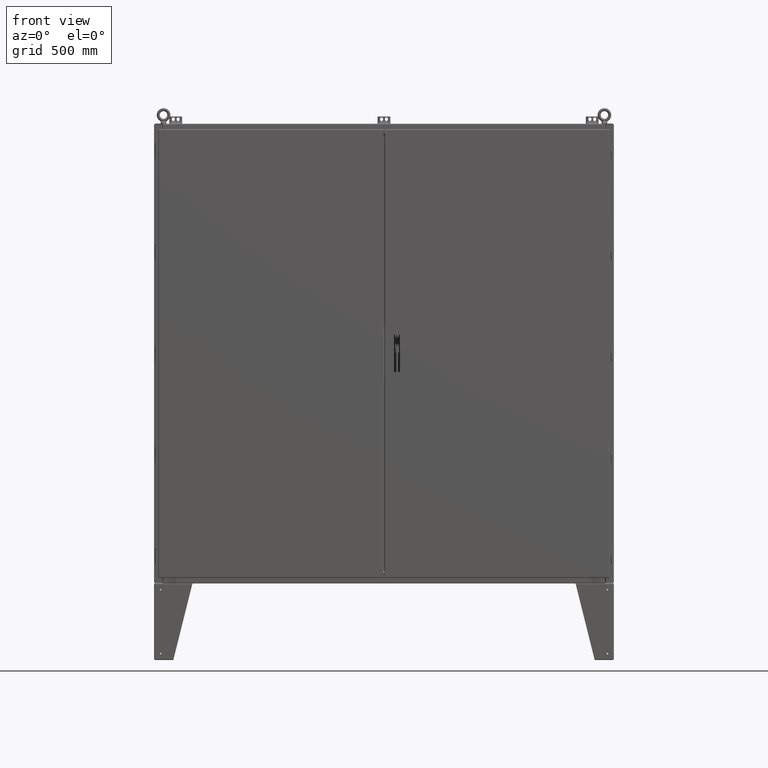
[diagram: clean part render]
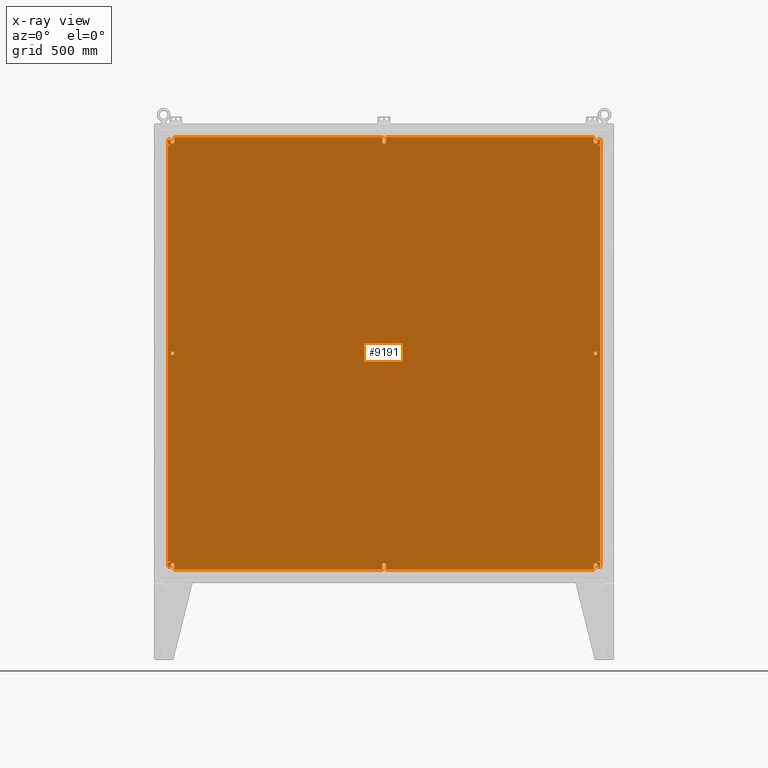
[diagram: x-ray — body ghosted, one internal face saturated and labeled with its STEP entity id]
A machine part, front view, then the same camera in x-ray: the body is ghosted and one INTERNAL B-rep face — a face not visible from any outside direction — is saturated and labeled: STEP entity #9191.
In plain terms, the highlighted planar face has unit normal (0, -1, 0).
Its self-contained STEP definition (entity closure, byte-faithful):
#9191 = ADVANCED_FACE( '', ( #18903, #18904, #18905, #18906, #18907, #18908, #18909 ), #18910, .F. );
#18903 = FACE_BOUND( '', #38440, .T. );
#18904 = FACE_BOUND( '', #38441, .T. );
#18905 = FACE_BOUND( '', #38442, .T. );
#18906 = FACE_BOUND( '', #38443, .T. );
#18907 = FACE_BOUND( '', #38444, .T. );
#18908 = FACE_BOUND( '', #38445, .T. );
#18909 = FACE_OUTER_BOUND( '', #38446, .T. );
#18910 = PLANE( '', #38447 );
#38440 = EDGE_LOOP( '', ( #69443 ) );
#38441 = EDGE_LOOP( '', ( #69444 ) );
#38442 = EDGE_LOOP( '', ( #69445 ) );
#38443 = EDGE_LOOP( '', ( #69446 ) );
#38444 = EDGE_LOOP( '', ( #69447 ) );
#38445 = EDGE_LOOP( '', ( #69448 ) );
#38446 = EDGE_LOOP( '', ( #69449, #69450, #69451, #69452, #69453, #69454, #69455, #69456, #69457, #69458, #69459, #69460, #69461, #69462, #69463, #69464, #69465, #69466, #69467, #69468, #69469, #69470, #69471, #69472, #69473, #69474, #69475, #69476, #69477, #69478, #69479, #69480 ) );
#38447 = AXIS2_PLACEMENT_3D( '', #69481, #69482, #69483 );
#69443 = ORIENTED_EDGE( '', *, *, #81985, .F. );
#69444 = ORIENTED_EDGE( '', *, *, #80690, .F. );
#69445 = ORIENTED_EDGE( '', *, *, #80844, .F. );
#69446 = ORIENTED_EDGE( '', *, *, #81281, .F. );
#69447 = ORIENTED_EDGE( '', *, *, #73898, .F. );
#69448 = ORIENTED_EDGE( '', *, *, #80079, .F. );
#69449 = ORIENTED_EDGE( '', *, *, #80392, .F. );
#69450 = ORIENTED_EDGE( '', *, *, #81986, .F. );
#69451 = ORIENTED_EDGE( '', *, *, #80652, .F. );
#69452 = ORIENTED_EDGE( '', *, *, #80350, .F. );
#69453 = ORIENTED_EDGE( '', *, *, #79677, .F. );
#69454 = ORIENTED_EDGE( '', *, *, #80931, .T. );
#69455 = ORIENTED_EDGE( '', *, *, #81149, .T. );
#69456 = ORIENTED_EDGE( '', *, *, #79913, .T. );
#69457 = ORIENTED_EDGE( '', *, *, #81987, .T. );
#69458 = ORIENTED_EDGE( '', *, *, #80423, .T. );
#69459 = ORIENTED_EDGE( '', *, *, #81046, .T. );
#69460 = ORIENTED_EDGE( '', *, *, #78937, .T. );
#69461 = ORIENTED_EDGE( '', *, *, #81988, .T. );
#69462 = ORIENTED_EDGE( '', *, *, #81690, .T. );
#69463 = ORIENTED_EDGE( '', *, *, #81299, .T. );
#69464 = ORIENTED_EDGE( '', *, *, #78144, .T. );
#69465 = ORIENTED_EDGE( '', *, *, #81989, .T. );
#69466 = ORIENTED_EDGE( '', *, *, #75605, .F. );
#69467 = ORIENTED_EDGE( '', *, *, #75639, .F. );
#69468 = ORIENTED_EDGE( '', *, *, #81069, .F. );
#69469 = ORIENTED_EDGE( '', *, *, #78234, .T. );
#69470 = ORIENTED_EDGE( '', *, *, #81727, .T. );
#69471 = ORIENTED_EDGE( '', *, *, #76851, .T. );
#69472 = ORIENTED_EDGE( '', *, *, #80719, .T. );
#69473 = ORIENTED_EDGE( '', *, *, #75847, .T. );
#69474 = ORIENTED_EDGE( '', *, *, #73639, .T. );
#69475 = ORIENTED_EDGE( '', *, *, #81990, .T. );
#69476 = ORIENTED_EDGE( '', *, *, #81172, .T. );
#69477 = ORIENTED_EDGE( '', *, *, #74404, .T. );
#69478 = ORIENTED_EDGE( '', *, *, #73621, .T. );
#69479 = ORIENTED_EDGE( '', *, *, #79890, .T. );
#69480 = ORIENTED_EDGE( '', *, *, #74752, .T. );
#69481 = CARTESIAN_POINT( '', ( 0.000000000000000, 2.66700000000000, 0.000000000000000 ) );
#69482 = DIRECTION( '', ( 0.000000000000000, -1.00000000000000, 0.000000000000000 ) );
#69483 = DIRECTION( '', ( 0.000000000000000, 0.000000000000000, -1.00000000000000 ) );
#73621 = EDGE_CURVE( '', #83978, #83983, #83985, .T. );
#73639 = EDGE_CURVE( '', #84017, #84015, #84018, .T. );
#73898 = EDGE_CURVE( '', #84470, #84470, #84471, .F. );
#74404 = EDGE_CURVE( '', #85336, #83978, #85340, .T. );
#74752 = EDGE_CURVE( '', #85918, #85916, #85919, .T. );
#75605 = EDGE_CURVE( '', #87321, #87322, #87323, .T. );
#75639 = EDGE_CURVE( '', #87376, #87321, #87378, .F. );
#75847 = EDGE_CURVE( '', #87711, #84017, #87715, .T. );
#76851 = EDGE_CURVE( '', #89279, #89284, #89286, .T. );
#78144 = EDGE_CURVE( '', #91230, #91228, #91231, .T. );
#78234 = EDGE_CURVE( '', #91353, #91351, #91354, .T. );
#78937 = EDGE_CURVE( '', #92346, #92347, #92348, .T. );
#79677 = EDGE_CURVE( '', #93353, #93355, #93356, .F. );
#79890 = EDGE_CURVE( '', #83983, #85918, #93635, .T. );
#79913 = EDGE_CURVE( '', #93660, #93665, #93667, .T. );
#80079 = EDGE_CURVE( '', #93873, #93873, #93874, .F. );
#80350 = EDGE_CURVE( '', #93355, #94221, #94222, .F. );
#80392 = EDGE_CURVE( '', #94274, #85916, #94275, .F. );
#80423 = EDGE_CURVE( '', #94314, #94312, #94315, .T. );
#80652 = EDGE_CURVE( '', #94221, #94602, #94606, .F. );
#80690 = EDGE_CURVE( '', #94647, #94647, #94648, .F. );
#80719 = EDGE_CURVE( '', #89284, #87711, #94683, .T. );
#80844 = EDGE_CURVE( '', #94832, #94832, #94833, .F. );
#80931 = EDGE_CURVE( '', #93353, #94929, #94930, .T. );
#81046 = EDGE_CURVE( '', #94312, #92346, #95060, .T. );
#81069 = EDGE_CURVE( '', #91353, #87376, #95086, .F. );
#81149 = EDGE_CURVE( '', #94929, #93660, #95179, .T. );
#81172 = EDGE_CURVE( '', #95205, #85336, #95206, .T. );
#81281 = EDGE_CURVE( '', #95332, #95332, #95333, .F. );
#81299 = EDGE_CURVE( '', #95350, #91230, #95354, .T. );
#81690 = EDGE_CURVE( '', #95809, #95350, #95813, .T. );
#81727 = EDGE_CURVE( '', #91351, #89279, #95856, .T. );
#81985 = EDGE_CURVE( '', #96127, #96127, #96128, .F. );
#81986 = EDGE_CURVE( '', #94602, #94274, #96129, .T. );
#81987 = EDGE_CURVE( '', #93665, #94314, #96130, .T. );
#81988 = EDGE_CURVE( '', #92347, #95809, #96131, .T. );
#81989 = EDGE_CURVE( '', #91228, #87322, #96132, .T. );
#81990 = EDGE_CURVE( '', #84015, #95205, #96133, .T. );
#83978 = VERTEX_POINT( '', #100548 );
#83983 = VERTEX_POINT( '', #100555 );
#83985 = LINE( '', #100558, #100559 );
#84015 = VERTEX_POINT( '', #100640 );
#84017 = VERTEX_POINT( '', #100642 );
#84018 = LINE( '', #100643, #100644 );
#84470 = VERTEX_POINT( '', #101744 );
#84471 = CIRCLE( '', #101745, 2.99720000000000 );
#85336 = VERTEX_POINT( '', #104354 );
#85340 = LINE( '', #104360, #104361 );
#85916 = VERTEX_POINT( '', #105976 );
#85918 = VERTEX_POINT( '', #105978 );
#85919 = LINE( '', #105979, #105980 );
#87321 = VERTEX_POINT( '', #109701 );
#87322 = VERTEX_POINT( '', #109702 );
#87323 = LINE( '', #109703, #109704 );
#87376 = VERTEX_POINT( '', #109865 );
#87378 = CIRCLE( '', #109868, 7.13740000000000 );
#87711 = VERTEX_POINT( '', #110757 );
#87715 = LINE( '', #110763, #110764 );
#89279 = VERTEX_POINT( '', #115019 );
#89284 = VERTEX_POINT( '', #115025 );
#89286 = CIRCLE( '', #115028, 7.13739999999943 );
#91228 = VERTEX_POINT( '', #121039 );
#91230 = VERTEX_POINT( '', #121041 );
#91231 = LINE( '', #121042, #121043 );
#91351 = VERTEX_POINT( '', #121376 );
#91353 = VERTEX_POINT( '', #121378 );
#91354 = LINE( '', #121379, #121380 );
#92346 = VERTEX_POINT( '', #124485 );
#92347 = VERTEX_POINT( '', #124486 );
#92348 = LINE( '', #124487, #124488 );
#93353 = VERTEX_POINT( '', #127340 );
#93355 = VERTEX_POINT( '', #127342 );
#93356 = LINE( '', #127343, #127344 );
#93635 = CIRCLE( '', #128033, 7.13739999999943 );
#93660 = VERTEX_POINT( '', #128077 );
#93665 = VERTEX_POINT( '', #128084 );
#93667 = LINE( '', #128087, #128088 );
#93873 = VERTEX_POINT( '', #128612 );
#93874 = CIRCLE( '', #128613, 2.99720000000000 );
#94221 = VERTEX_POINT( '', #129545 );
#94222 = LINE( '', #129546, #129547 );
#94274 = VERTEX_POINT( '', #129692 );
#94275 = LINE( '', #129693, #129694 );
#94312 = VERTEX_POINT( '', #129762 );
#94314 = VERTEX_POINT( '', #129764 );
#94315 = LINE( '', #129765, #129766 );
#94602 = VERTEX_POINT( '', #130616 );
#94606 = CIRCLE( '', #130621, 7.13740000000000 );
#94647 = VERTEX_POINT( '', #130754 );
#94648 = CIRCLE( '', #130755, 7.13740000000000 );
#94683 = LINE( '', #130812, #130813 );
#94832 = VERTEX_POINT( '', #131246 );
#94833 = CIRCLE( '', #131247, 2.99720000000000 );
#94929 = VERTEX_POINT( '', #131567 );
#94930 = LINE( '', #131568, #131569 );
#95060 = LINE( '', #131879, #131880 );
#95086 = LINE( '', #131928, #131929 );
#95179 = CIRCLE( '', #132224, 7.13739999999943 );
#95205 = VERTEX_POINT( '', #132272 );
#95206 = LINE( '', #132273, #132274 );
#95332 = VERTEX_POINT( '', #132635 );
#95333 = CIRCLE( '', #132636, 2.99720000000000 );
#95350 = VERTEX_POINT( '', #132670 );
#95354 = CIRCLE( '', #132675, 7.13739999999943 );
#95809 = VERTEX_POINT( '', #134212 );
#95813 = LINE( '', #134218, #134219 );
#95856 = LINE( '', #134350, #134351 );
#96127 = VERTEX_POINT( '', #134822 );
#96128 = CIRCLE( '', #134823, 7.13740000000000 );
#96129 = LINE( '', #134824, #134825 );
#96130 = LINE( '', #134826, #134827 );
#96131 = LINE( '', #134828, #134829 );
#96132 = LINE( '', #134830, #134831 );
#96133 = LINE( '', #134832, #134833 );
#100548 = CARTESIAN_POINT( '', ( -848.508050332916, 2.66700000000109, 847.428550333135 ) );
#100555 = CARTESIAN_POINT( '', ( -848.508050332916, 2.66700000000109, 841.370650332917 ) );
#100558 = CARTESIAN_POINT( '', ( -848.508050332931, 2.66700000000000, 1.55504906655027E-011 ) );
#100559 = VECTOR( '', #136014, 1000.00000000000 );
#100640 = CARTESIAN_POINT( '', ( -860.120200000000, 2.66699999999995, -850.100948481058 ) );
#100642 = CARTESIAN_POINT( '', ( -851.150734791207, 2.66700000000020, -850.100948481058 ) );
#100643 = CARTESIAN_POINT( '', ( 0.000000000000000, 2.66700000000000, -850.100948481058 ) );
#100644 = VECTOR( '', #136028, 1000.00000000000 );
#101744 = CARTESIAN_POINT( '', ( -854.075000000000, 2.66700000000020, 825.677800000000 ) );
#101745 = AXIS2_PLACEMENT_3D( '', #136254, #136255, #136256 );
#104354 = CARTESIAN_POINT( '', ( -851.150734791207, 2.66700000000000, 850.100948481058 ) );
#104360 = CARTESIAN_POINT( '', ( -5.30962530449220, 2.66700000000000, -5.25058898219768 ) );
#104361 = VECTOR( '', #136552, 1000.00000000000 );
#105976 = CARTESIAN_POINT( '', ( -834.233250332917, 2.66700000000000, 860.120200000000 ) );
#105978 = CARTESIAN_POINT( '', ( -834.233250332917, 2.66700000000109, 841.370650332917 ) );
#105979 = CARTESIAN_POINT( '', ( -834.233250332922, 2.66700000000000, 4.73417098478091E-012 ) );
#105980 = VECTOR( '', #136766, 1000.00000000000 );
#109701 = CARTESIAN_POINT( '', ( 7.13740000000035, 2.66700000000000, -841.370650332917 ) );
#109702 = CARTESIAN_POINT( '', ( 7.13740000000041, 2.66700000000000, -860.120200000000 ) );
#109703 = CARTESIAN_POINT( '', ( 7.13740000000041, 2.66700000000000, -860.120200000000 ) );
#109704 = VECTOR( '', #137247, 1000.00000000000 );
#109865 = CARTESIAN_POINT( '', ( -7.13739999999965, 2.66700000000000, -841.370650332917 ) );
#109868 = AXIS2_PLACEMENT_3D( '', #137270, #137271, #137272 );
#110757 = CARTESIAN_POINT( '', ( -848.508050332916, 2.66700000000020, -847.428550333135 ) );
#110763 = CARTESIAN_POINT( '', ( -5.30962530449220, 2.66700000000000, 5.25058898219768 ) );
#110764 = VECTOR( '', #137386, 1000.00000000000 );
#115019 = CARTESIAN_POINT( '', ( -834.233250332917, 2.66700000000020, -841.370650332917 ) );
#115025 = CARTESIAN_POINT( '', ( -848.508050332916, 2.66700000000020, -841.370650332917 ) );
#115028 = AXIS2_PLACEMENT_3D( '', #137984, #137985, #137986 );
#121039 = CARTESIAN_POINT( '', ( 834.233250332917, 2.66700000000000, -860.120200000000 ) );
#121041 = CARTESIAN_POINT( '', ( 834.233250332917, 2.66700000000020, -841.370650332917 ) );
#121042 = CARTESIAN_POINT( '', ( 834.233250332922, 2.66700000000000, -4.73417098478091E-012 ) );
#121043 = VECTOR( '', #138625, 1000.00000000000 );
#121376 = CARTESIAN_POINT( '', ( -834.233250332917, 2.66700000000000, -860.120200000000 ) );
#121378 = CARTESIAN_POINT( '', ( -7.13739999999952, 2.66700000000000, -860.120200000000 ) );
#121379 = CARTESIAN_POINT( '', ( -860.120200000000, 2.66700000000000, -860.120200000000 ) );
#121380 = VECTOR( '', #138696, 1000.00000000000 );
#124485 = CARTESIAN_POINT( '', ( 860.120200000000, 2.66700000000000, -850.100948481058 ) );
#124486 = CARTESIAN_POINT( '', ( 851.150734791207, 2.66700000000000, -850.100948481058 ) );
#124487 = CARTESIAN_POINT( '', ( 0.000000000000000, 2.66700000000000, -850.100948481058 ) );
#124488 = VECTOR( '', #139063, 1000.00000000000 );
#127340 = CARTESIAN_POINT( '', ( 834.233250332917, 2.66700000000000, 860.120200000000 ) );
#127342 = CARTESIAN_POINT( '', ( 7.13740000000041, 2.66700000000000, 860.120200000000 ) );
#127343 = CARTESIAN_POINT( '', ( 860.120200000000, 2.66700000000000, 860.120200000000 ) );
#127344 = VECTOR( '', #139471, 1000.00000000000 );
#128033 = AXIS2_PLACEMENT_3D( '', #139581, #139582, #139583 );
#128077 = CARTESIAN_POINT( '', ( 848.508050332916, 2.66700000000020, 841.370650332917 ) );
#128084 = CARTESIAN_POINT( '', ( 848.508050332916, 2.66700000000020, 847.428550333135 ) );
#128087 = CARTESIAN_POINT( '', ( 848.508050332931, 2.66700000000000, 1.55504906655027E-011 ) );
#128088 = VECTOR( '', #139603, 1000.00000000000 );
#128612 = CARTESIAN_POINT( '', ( -854.075000000000, 2.66700000000020, -831.672200000000 ) );
#128613 = AXIS2_PLACEMENT_3D( '', #139699, #139700, #139701 );
#129545 = CARTESIAN_POINT( '', ( 7.13740000000035, 2.66700000000000, 841.370650332917 ) );
#129546 = CARTESIAN_POINT( '', ( 7.13740000000041, 2.66700000000000, 860.120200000000 ) );
#129547 = VECTOR( '', #139842, 1000.00000000000 );
#129692 = CARTESIAN_POINT( '', ( -7.13739999999963, 2.66700000000000, 860.120200000000 ) );
#129693 = CARTESIAN_POINT( '', ( 860.120200000000, 2.66700000000000, 860.120200000000 ) );
#129694 = VECTOR( '', #139874, 1000.00000000000 );
#129762 = CARTESIAN_POINT( '', ( 860.120200000000, 2.66700000000005, 850.100948481058 ) );
#129764 = CARTESIAN_POINT( '', ( 851.150734791207, 2.66700000000020, 850.100948481058 ) );
#129765 = CARTESIAN_POINT( '', ( 0.000000000000000, 2.66700000000000, 850.100948481058 ) );
#129766 = VECTOR( '', #139903, 1000.00000000000 );
#130616 = CARTESIAN_POINT( '', ( -7.13739999999965, 2.66700000000000, 841.370650332917 ) );
#130621 = AXIS2_PLACEMENT_3D( '', #139997, #139998, #139999 );
#130754 = CARTESIAN_POINT( '', ( -841.370650332917, 2.66700000000020, -7.13740000000003 ) );
#130755 = AXIS2_PLACEMENT_3D( '', #140014, #140015, #140016 );
#130812 = CARTESIAN_POINT( '', ( -848.508050332931, 2.66700000000000, -1.55504906655027E-011 ) );
#130813 = VECTOR( '', #140030, 1000.00000000000 );
#131246 = CARTESIAN_POINT( '', ( 854.075000000000, 2.66700000000020, 825.677800000000 ) );
#131247 = AXIS2_PLACEMENT_3D( '', #140090, #140091, #140092 );
#131567 = CARTESIAN_POINT( '', ( 834.233250332917, 2.66700000000020, 841.370650332917 ) );
#131568 = CARTESIAN_POINT( '', ( 834.233250332922, 2.66700000000000, 4.73417098478091E-012 ) );
#131569 = VECTOR( '', #140123, 1000.00000000000 );
#131879 = CARTESIAN_POINT( '', ( 860.120200000000, 2.66700000000000, -860.120200000000 ) );
#131880 = VECTOR( '', #140175, 1000.00000000000 );
#131928 = CARTESIAN_POINT( '', ( -7.13739999999952, 2.66700000000000, -860.120200000000 ) );
#131929 = VECTOR( '', #140184, 1000.00000000000 );
#132224 = AXIS2_PLACEMENT_3D( '', #140217, #140218, #140219 );
#132272 = CARTESIAN_POINT( '', ( -860.120200000000, 2.66700000000000, 850.100948481058 ) );
#132273 = CARTESIAN_POINT( '', ( 0.000000000000000, 2.66700000000000, 850.100948481058 ) );
#132274 = VECTOR( '', #140228, 1000.00000000000 );
#132635 = CARTESIAN_POINT( '', ( 854.075000000000, 2.66700000000020, -831.672200000000 ) );
#132636 = AXIS2_PLACEMENT_3D( '', #140270, #140271, #140272 );
#132670 = CARTESIAN_POINT( '', ( 848.508050332916, 2.66700000000020, -841.370650332917 ) );
#132675 = AXIS2_PLACEMENT_3D( '', #140282, #140283, #140284 );
#134212 = CARTESIAN_POINT( '', ( 848.508050332916, 2.66700000000020, -847.428550333135 ) );
#134218 = CARTESIAN_POINT( '', ( 848.508050332931, 2.66700000000000, -1.55504906655027E-011 ) );
#134219 = VECTOR( '', #140399, 1000.00000000000 );
#134350 = CARTESIAN_POINT( '', ( -834.233250332922, 2.66700000000000, -4.73417098478091E-012 ) );
#134351 = VECTOR( '', #140405, 1000.00000000000 );
#134822 = CARTESIAN_POINT( '', ( 841.370650332916, 2.66700000000020, -7.13739999999997 ) );
#134823 = AXIS2_PLACEMENT_3D( '', #140501, #140502, #140503 );
#134824 = CARTESIAN_POINT( '', ( -7.13739999999963, 2.66700000000000, 860.120200000000 ) );
#134825 = VECTOR( '', #140504, 1000.00000000000 );
#134826 = CARTESIAN_POINT( '', ( 5.30962530449228, 2.66700000000000, -5.25058898219776 ) );
#134827 = VECTOR( '', #140505, 1000.00000000000 );
#134828 = CARTESIAN_POINT( '', ( 5.30962530449220, 2.66700000000000, 5.25058898219768 ) );
#134829 = VECTOR( '', #140506, 1000.00000000000 );
#134830 = CARTESIAN_POINT( '', ( -860.120200000000, 2.66700000000000, -860.120200000000 ) );
#134831 = VECTOR( '', #140507, 1000.00000000000 );
#134832 = CARTESIAN_POINT( '', ( -860.120200000000, 2.66700000000000, 860.120200000000 ) );
#134833 = VECTOR( '', #140508, 1000.00000000000 );
#136014 = DIRECTION( '', ( -1.83268628499177E-014, 0.000000000000000, -1.00000000000000 ) );
#136028 = DIRECTION( '', ( -1.00000000000000, 0.000000000000000, 0.000000000000000 ) );
#136254 = CARTESIAN_POINT( '', ( -854.075000000000, 2.66700000000020, 828.675000000000 ) );
#136255 = DIRECTION( '', ( 0.000000000000000, -1.00000000000000, 0.000000000000000 ) );
#136256 = DIRECTION( '', ( 0.000000000000000, 0.000000000000000, -1.00000000000000 ) );
#136552 = DIRECTION( '', ( 0.703142750323896, 0.000000000000000, -0.711048713286894 ) );
#136766 = DIRECTION( '', ( 5.67487687992731E-015, 0.000000000000000, 1.00000000000000 ) );
#137247 = DIRECTION( '', ( -6.45388298417568E-017, 0.000000000000000, -1.00000000000000 ) );
#137270 = CARTESIAN_POINT( '', ( 3.52328287664352E-013, 2.66700000000000, -841.370650332917 ) );
#137271 = DIRECTION( '', ( 0.000000000000000, -1.00000000000000, 0.000000000000000 ) );
#137272 = DIRECTION( '', ( 0.000000000000000, 0.000000000000000, -1.00000000000000 ) );
#137386 = DIRECTION( '', ( -0.703142750323896, 0.000000000000000, -0.711048713286894 ) );
#137984 = CARTESIAN_POINT( '', ( -841.370650332917, 2.66700000000020, -841.370650332917 ) );
#137985 = DIRECTION( '', ( 0.000000000000000, -1.00000000000000, 0.000000000000000 ) );
#137986 = DIRECTION( '', ( 0.000000000000000, 0.000000000000000, -1.00000000000000 ) );
#138625 = DIRECTION( '', ( -5.67487687992731E-015, 0.000000000000000, -1.00000000000000 ) );
#138696 = DIRECTION( '', ( -1.00000000000000, 3.74939945665465E-033, 6.12323399573677E-017 ) );
#139063 = DIRECTION( '', ( -1.00000000000000, 0.000000000000000, 0.000000000000000 ) );
#139471 = DIRECTION( '', ( 1.00000000000000, 0.000000000000000, 0.000000000000000 ) );
#139581 = CARTESIAN_POINT( '', ( -841.370650332917, 2.66700000000020, 841.370650332917 ) );
#139582 = DIRECTION( '', ( 0.000000000000000, -1.00000000000000, 0.000000000000000 ) );
#139583 = DIRECTION( '', ( 0.000000000000000, 0.000000000000000, -1.00000000000000 ) );
#139603 = DIRECTION( '', ( -1.83268628499177E-014, 0.000000000000000, 1.00000000000000 ) );
#139699 = CARTESIAN_POINT( '', ( -854.075000000000, 2.66700000000020, -828.675000000000 ) );
#139700 = DIRECTION( '', ( 0.000000000000000, -1.00000000000000, 0.000000000000000 ) );
#139701 = DIRECTION( '', ( 0.000000000000000, 0.000000000000000, -1.00000000000000 ) );
#139842 = DIRECTION( '', ( 0.000000000000000, 0.000000000000000, 1.00000000000000 ) );
#139874 = DIRECTION( '', ( 1.00000000000000, 0.000000000000000, 0.000000000000000 ) );
#139903 = DIRECTION( '', ( 1.00000000000000, 0.000000000000000, 0.000000000000000 ) );
#139997 = CARTESIAN_POINT( '', ( 3.52328287664352E-013, 2.66700000000000, 841.370650332917 ) );
#139998 = DIRECTION( '', ( 0.000000000000000, -1.00000000000000, 0.000000000000000 ) );
#139999 = DIRECTION( '', ( 0.000000000000000, 0.000000000000000, -1.00000000000000 ) );
#140014 = CARTESIAN_POINT( '', ( -841.370650332917, 2.66700000000020, -2.82352760413880E-014 ) );
#140015 = DIRECTION( '', ( 0.000000000000000, -1.00000000000000, 0.000000000000000 ) );
#140016 = DIRECTION( '', ( 0.000000000000000, 0.000000000000000, -1.00000000000000 ) );
#140030 = DIRECTION( '', ( 1.83268628499177E-014, 0.000000000000000, -1.00000000000000 ) );
#140090 = CARTESIAN_POINT( '', ( 854.075000000000, 2.66700000000020, 828.675000000000 ) );
#140091 = DIRECTION( '', ( 0.000000000000000, -1.00000000000000, 0.000000000000000 ) );
#140092 = DIRECTION( '', ( 0.000000000000000, 0.000000000000000, -1.00000000000000 ) );
#140123 = DIRECTION( '', ( 5.67487687992731E-015, 0.000000000000000, -1.00000000000000 ) );
#140175 = DIRECTION( '', ( 1.22464679914735E-016, -6.12323399573677E-017, -1.00000000000000 ) );
#140184 = DIRECTION( '', ( -6.45388298417568E-017, 0.000000000000000, -1.00000000000000 ) );
#140217 = CARTESIAN_POINT( '', ( 841.370650332917, 2.66700000000020, 841.370650332917 ) );
#140218 = DIRECTION( '', ( 0.000000000000000, -1.00000000000000, 0.000000000000000 ) );
#140219 = DIRECTION( '', ( 0.000000000000000, 0.000000000000000, -1.00000000000000 ) );
#140228 = DIRECTION( '', ( 1.00000000000000, 0.000000000000000, 0.000000000000000 ) );
#140270 = CARTESIAN_POINT( '', ( 854.075000000000, 2.66700000000020, -828.675000000000 ) );
#140271 = DIRECTION( '', ( 0.000000000000000, -1.00000000000000, 0.000000000000000 ) );
#140272 = DIRECTION( '', ( 0.000000000000000, 0.000000000000000, -1.00000000000000 ) );
#140282 = CARTESIAN_POINT( '', ( 841.370650332917, 2.66700000000020, -841.370650332917 ) );
#140283 = DIRECTION( '', ( 0.000000000000000, -1.00000000000000, 0.000000000000000 ) );
#140284 = DIRECTION( '', ( 0.000000000000000, 0.000000000000000, -1.00000000000000 ) );
#140399 = DIRECTION( '', ( 1.83268628499177E-014, 0.000000000000000, 1.00000000000000 ) );
#140405 = DIRECTION( '', ( -5.67487687992731E-015, 0.000000000000000, 1.00000000000000 ) );
#140501 = CARTESIAN_POINT( '', ( 841.370650332916, 2.66700000000020, 2.77555756156289E-014 ) );
#140502 = DIRECTION( '', ( 0.000000000000000, -1.00000000000000, 0.000000000000000 ) );
#140503 = DIRECTION( '', ( 0.000000000000000, 0.000000000000000, -1.00000000000000 ) );
#140504 = DIRECTION( '', ( 0.000000000000000, 0.000000000000000, 1.00000000000000 ) );
#140505 = DIRECTION( '', ( 0.703142750323896, 0.000000000000000, 0.711048713286894 ) );
#140506 = DIRECTION( '', ( -0.703142750323896, 0.000000000000000, 0.711048713286894 ) );
#140507 = DIRECTION( '', ( -1.00000000000000, 3.74939945665465E-033, 6.12323399573677E-017 ) );
#140508 = DIRECTION( '', ( 0.000000000000000, 6.12323399573677E-017, 1.00000000000000 ) );